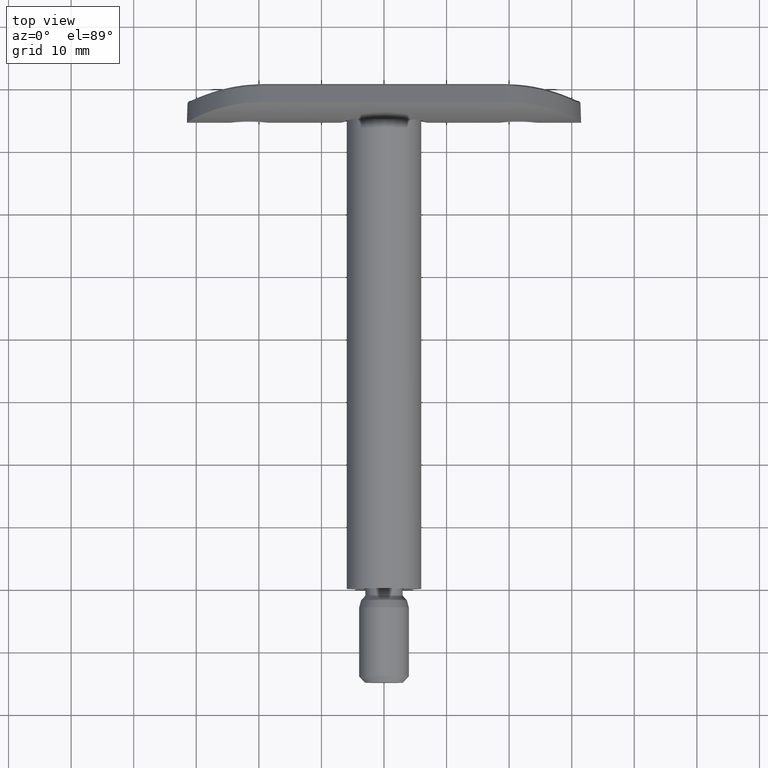
[diagram: clean part render]
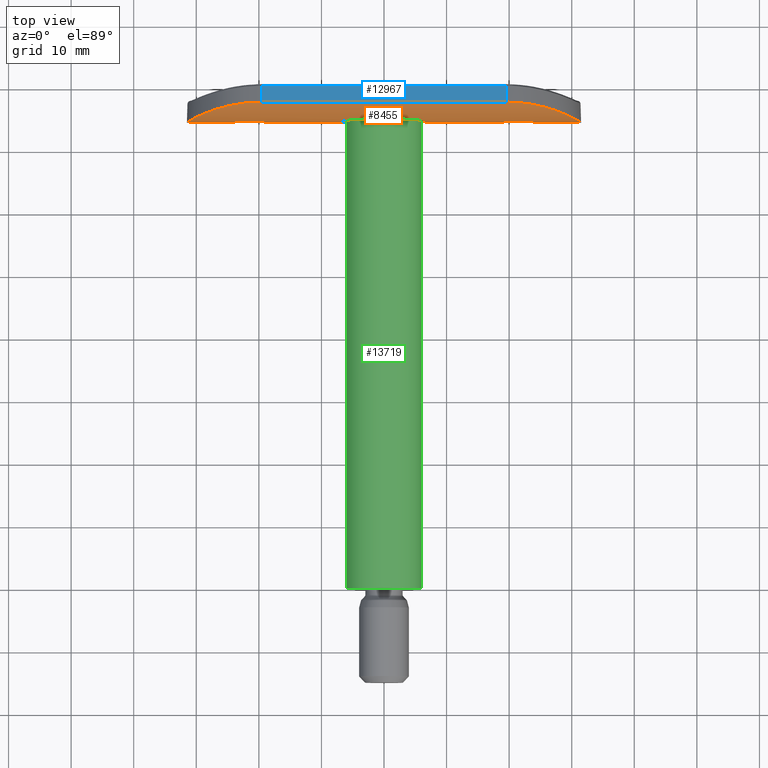
[diagram: same view with three faces highlighted in distinct colors, each labeled with its STEP entity id]
A machine part, top view with three faces highlighted in distinct colors.
Their STEP definitions:

[orange] entity #8455 — the highlighted cylindrical surface (partial cylindrical patch) has radius 24.7 mm, axis along (1, 0, 0).
#14 = B_SPLINE_CURVE_WITH_KNOTS ( 'NONE', 3,
 ( #2940, #12219, #14462, #5200, #1727, #13321, #4004, #9780, #1828, #1782, #12117, #7633, #11052, #14567, #7579, #1629, #553, #8775, #9930, #2985, #11106, #12266, #5301, #13430 ),
 .UNSPECIFIED., .F., .F.,
 ( 4, 2, 2, 2, 2, 2, 2, 2, 2, 2, 2, 4 ),
 ( 0.0000000000000000000, 0.002406580534152873200, 0.003609870801229308900, 0.004813161068305744600, 0.007219741602458616000, 0.008423031869535050800, 0.009626322136611485700, 0.01203290267076435900, 0.01443948320491723000, 0.01564277347199366500, 0.01684606373907009800, 0.01925264427322297100 ),
 .UNSPECIFIED. ) ;
#95 = VERTEX_POINT ( 'NONE', #11768 ) ;
#172 = ORIENTED_EDGE ( 'NONE', *, *, #750, .T. ) ;
#198 = DIRECTION ( 'NONE',  ( -0.0000000000000000000, -0.0000000000000000000, -1.000000000000000000 ) ) ;
#281 = CARTESIAN_POINT ( 'NONE',  ( 1.441817418702243700, -3.458668788007271700, -18.57955434167038800 ) ) ;
#290 = CARTESIAN_POINT ( 'NONE',  ( -3.249807177699458400, -3.285276256254570100, -21.28221223882568600 ) ) ;
#346 = CARTESIAN_POINT ( 'NONE',  ( 12.00000000000000200, -0.3891176290278198800, -19.50000000000000400 ) ) ;
#553 = CARTESIAN_POINT ( 'NONE',  ( 5.463922679457855500, -2.899855688073363700, 30.40472026188329500 ) ) ;
#695 = CARTESIAN_POINT ( 'NONE',  ( -1.982421812593012600, -3.420960420399060500, 18.91580210916033200 ) ) ;
#724 = CARTESIAN_POINT ( 'NONE',  ( 11.42949741348638400, -0.6987825248718153600, -23.47544721763576800 ) ) ;
#745 = CARTESIAN_POINT ( 'NONE',  ( -0.4220505040573415100, -3.497286553197269200, 18.27042330278523600 ) ) ;
#750 = EDGE_CURVE ( 'NONE', #95, #11746, #13730, .T. ) ;
#751 = CARTESIAN_POINT ( 'NONE',  ( -1.986943769982262100, -3.420596174952429600, -24.08074577929469800 ) ) ;
#800 = CARTESIAN_POINT ( 'NONE',  ( 2.921636230268347400, -3.326735962964975500, 20.06057683977638100 ) ) ;
#803 = CARTESIAN_POINT ( 'NONE',  ( 0.4262816367173300500, -3.497196390455035600, -24.72888380609290900 ) ) ;
#827 = CARTESIAN_POINT ( 'NONE',  ( -5.975428329596222400E-016, -3.499999999999999600, -31.50000000000000000 ) ) ;
#854 = CARTESIAN_POINT ( 'NONE',  ( 3.250117987902504200, -3.285235001506537700, 21.28960992835650500 ) ) ;
#904 = CARTESIAN_POINT ( 'NONE',  ( 2.582514304022025500, -3.364912029721630400, 23.48463302487810400 ) ) ;
#950 = CARTESIAN_POINT ( 'NONE',  ( 3.702883057980036300, -3.221611446828293300, -5.944753873245680600 ) ) ;
#1093 = CARTESIAN_POINT ( 'NONE',  ( -3.250190240478200800, -3.285225411215453300, -21.71199434389744100 ) ) ;
#1145 = CARTESIAN_POINT ( 'NONE',  ( -8.911261608662785600, -1.838321853592154600, 27.88239206832154700 ) ) ;
#1160 = CARTESIAN_POINT ( 'NONE',  ( -0.2109798347091573500, -3.500010510333770900, -18.24992012145774500 ) ) ;
#1179 = CARTESIAN_POINT ( 'NONE',  ( 4.944694126030440500, -2.999999999999999600, -4.954795656735005800 ) ) ;
#1208 = CARTESIAN_POINT ( 'NONE',  ( 2.921636230268347400, -3.326735962964975500, -20.06057683977638500 ) ) ;
#1289 = VERTEX_POINT ( 'NONE', #11454 ) ;
#1382 = CARTESIAN_POINT ( 'NONE',  ( -2.150301673070284600, -3.406681511644019000, -23.94612466389267900 ) ) ;
#1397 = VERTEX_POINT ( 'NONE', #8426 ) ;
#1440 = CARTESIAN_POINT ( 'NONE',  ( 3.145602793858011100, -3.298917505554015900, -22.34465928829434100 ) ) ;
#1483 = B_SPLINE_CURVE_WITH_KNOTS ( 'NONE', 3,
 ( #12209, #5242, #13366, #9920, #4342, #2075, #12469, #8811, #4198, #7844, #904, #12308, #13423, #9971, #1876, #6458, #3028, #854, #10133, #11190, #11234, #800, #5498, #5343, #4242, #14610, #14766, #5293, #9016, #1976, #3127, #7789, #10182, #13475, #745, #3177, #12362, #8968, #6515, #695, #8916, #11098, #13644, #14654, #7678, #4141, #8861, #1927, #3074, #5393, #6569, #7732, #10077, #2025, #11290, #4296, #12414, #5451, #6624, #6674, #14814, #14864, #13693, #4394, #5598, #9063 ),
 .UNSPECIFIED., .T., .F.,
 ( 4, 2, 2, 2, 2, 2, 2, 2, 2, 2, 2, 2, 2, 2, 2, 2, 2, 2, 2, 2, 2, 2, 2, 2, 2, 2, 2, 2, 2, 2, 2, 2, 4 ),
 ( 0.0000000000000000000, 0.0006356739169426549500, 0.001271347833885310100, 0.001907021750827965400, 0.002542695667770621100, 0.003178369584713276000, 0.003814043501655930800, 0.004449717418598586100, 0.005085391335541240500, 0.005721065252483895800, 0.006356739169426551100, 0.006992413086369205500, 0.007628087003311860700, 0.008263760920254515200, 0.008899434837197170400, 0.009535108754139825700, 0.01017078267108247900, 0.01080645658802513500, 0.01144213050496779000, 0.01207780442191044300, 0.01271347833885309900, 0.01334915225579575400, 0.01398482617273840900, 0.01462050008968106400, 0.01525617400662372000, 0.01589184792356637300, 0.01652752184050903000, 0.01716319575745168400, 0.01779886967439433700, 0.01843454359133699400, 0.01907021750827964800, 0.01970589142522230500, 0.02034156534216495900 ),
 .UNSPECIFIED. ) ;
#1500 = CARTESIAN_POINT ( 'NONE',  ( -0.4613270650688290300, -3.499938778425376800, 6.999783975279062700 ) ) ;
#1628 = EDGE_LOOP ( 'NONE', ( #10936, #12361, #7639, #10975 ) ) ;
#1629 = CARTESIAN_POINT ( 'NONE',  ( 6.166834720918713800, -2.727790392386204600, 30.05461524013826800 ) ) ;
#1638 = VECTOR ( 'NONE', #7577, 1000.000000000000000 ) ;
#1700 = CARTESIAN_POINT ( 'NONE',  ( -4.619758273601314100, -3.066392909125744000, 5.279069050060323700 ) ) ;
#1727 = CARTESIAN_POINT ( 'NONE',  ( 11.62887820642736400, -0.5915967544966699300, 22.68293612948989200 ) ) ;
#1782 = CARTESIAN_POINT ( 'NONE',  ( 9.890151245574553900, -1.434654235787243200, 26.64699636764817500 ) ) ;
#1799 = CARTESIAN_POINT ( 'NONE',  ( 10.86486654361806200, -0.9843359645018946400, -24.95505419486224600 ) ) ;
#1828 = CARTESIAN_POINT ( 'NONE',  ( 10.51842810678145800, -1.153150254458431100, 25.65304723848731100 ) ) ;
#1849 = FACE_BOUND ( 'NONE', #1628, .T. ) ;
#1876 = CARTESIAN_POINT ( 'NONE',  ( 3.145602793858011100, -3.298917505554015900, 22.34465928829433100 ) ) ;
#1927 = CARTESIAN_POINT ( 'NONE',  ( -3.228488752594627500, -3.288132100549915600, 21.07076263997144500 ) ) ;
#1931 = CARTESIAN_POINT ( 'NONE',  ( 1.628533578940714500, -3.446890606981302800, -24.32054149359074200 ) ) ;
#1954 = CARTESIAN_POINT ( 'NONE',  ( 2.252456887811377800, -3.398064970478003900, 6.631658829567119700 ) ) ;
#1964 = CARTESIAN_POINT ( 'NONE',  ( -2.449477864485654100, -3.378702782939688700, -23.64648115479911500 ) ) ;
#1969 = CARTESIAN_POINT ( 'NONE',  ( -2.596251214192388800E-015, 21.19999999999999900, 31.50000000000000000 ) ) ;
#1976 = CARTESIAN_POINT ( 'NONE',  ( 1.048445795597582600, -3.478523968811645200, 18.41639793004620900 ) ) ;
#2016 = CARTESIAN_POINT ( 'NONE',  ( 3.104373883665370500, -3.304985315062821400, -6.278156452919871500 ) ) ;
#2025 = CARTESIAN_POINT ( 'NONE',  ( -2.921687475631708200, -3.326729683492593900, 22.93929899338683900 ) ) ;
#2075 = CARTESIAN_POINT ( 'NONE',  ( 1.441954681305530400, -3.458661141373547300, 24.42038182540180800 ) ) ;
#2116 = CARTESIAN_POINT ( 'NONE',  ( -1.814120957742461100, -3.434271401321889800, -6.764719211756244900 ) ) ;
#2201 = CARTESIAN_POINT ( 'NONE',  ( -8.099404966363247000, -2.141546448550109400, -28.70539369568060200 ) ) ;
#2249 = CARTESIAN_POINT ( 'NONE',  ( 2.995621684029787500E-015, -3.499999999999999600, 31.50000000000000000 ) ) ;
#2298 = CARTESIAN_POINT ( 'NONE',  ( -9.653965207986141600, -1.536749814308947700, 26.98022621720532400 ) ) ;
#2316 = CARTESIAN_POINT ( 'NONE',  ( -2.445857231437020400, -3.379065480835992100, -19.34938136638993500 ) ) ;
#2360 = CARTESIAN_POINT ( 'NONE',  ( 3.228968999414811000, -3.288068742268655400, -21.07402802110504000 ) ) ;
#2609 = CARTESIAN_POINT ( 'NONE',  ( 2.920924858137348100, -3.326819413791212800, -22.94065377375132200 ) ) ;
#2790 = CARTESIAN_POINT ( 'NONE',  ( -12.00000000000000700, -0.3891176290278207700, 19.50000000000000000 ) ) ;
#2809 = CARTESIAN_POINT ( 'NONE',  ( -3.507858777830441500, -3.250488119786609800, 6.061956157192245300 ) ) ;
#2813 = ORIENTED_EDGE ( 'NONE', *, *, #7938, .T. ) ;
#2907 = CARTESIAN_POINT ( 'NONE',  ( 8.365447555507348200, -2.042077026027277600, -28.43512920070712700 ) ) ;
#2940 = CARTESIAN_POINT ( 'NONE',  ( 12.00000000000000200, -0.3891176290278198800, 19.50000000000000000 ) ) ;
#2955 = CARTESIAN_POINT ( 'NONE',  ( 1.613878791505601200, -3.459937399638181700, -31.43733599986672200 ) ) ;
#2985 = CARTESIAN_POINT ( 'NONE',  ( 3.199605881044099000, -3.295028801910493400, 31.15149741152382400 ) ) ;
#3005 = CARTESIAN_POINT ( 'NONE',  ( 1.814120957742453300, -3.434271401321890200, 6.764719211756246700 ) ) ;
#3028 = CARTESIAN_POINT ( 'NONE',  ( 3.249880998723770000, -3.285266457778697200, 21.71401965252696400 ) ) ;
#3074 = CARTESIAN_POINT ( 'NONE',  ( -3.249807177699458400, -3.285276256254570100, 21.28221223882567200 ) ) ;
#3105 = CARTESIAN_POINT ( 'NONE',  ( 9.882580253765647500, -1.437978920396823800, -26.65824030469762500 ) ) ;
#3119 = CARTESIAN_POINT ( 'NONE',  ( 2.895206156396185300, -3.330654714361623600, -6.377318429325933700 ) ) ;
#3127 = CARTESIAN_POINT ( 'NONE',  ( 0.8458750479650837300, -3.486392439299874600, 18.35481623275267500 ) ) ;
#3177 = CARTESIAN_POINT ( 'NONE',  ( -0.8418640684662275200, -3.486541973491128500, 18.35364382795063400 ) ) ;
#3195 = CARTESIAN_POINT ( 'NONE',  ( -2.921687475631707300, -3.326729683492594800, -22.93929899338684900 ) ) ;
#3256 = CARTESIAN_POINT ( 'NONE',  ( -12.00000000000000700, -0.3891176290278207700, -19.50000000000000400 ) ) ;
#3271 = CARTESIAN_POINT ( 'NONE',  ( -2.467196461669808500, -3.377382717035131600, -6.554754229386874800 ) ) ;
#3313 = CARTESIAN_POINT ( 'NONE',  ( -8.916507318172458300, -1.836285184458887900, -27.87664932174586200 ) ) ;
#3465 = CARTESIAN_POINT ( 'NONE',  ( -10.51579242464841000, -1.154463491023568500, 25.65865357391694000 ) ) ;
#3530 = CARTESIAN_POINT ( 'NONE',  ( 2.584887031182733000, -3.364656388163503200, -19.51867835071172800 ) ) ;
#3535 = CARTESIAN_POINT ( 'NONE',  ( -0.4220505040573415100, -3.497286553197269200, -18.27042330278524300 ) ) ;
#3541 = CARTESIAN_POINT ( 'NONE',  ( -3.082714793016406500, -3.307012495101080400, -20.44892233757737200 ) ) ;
#3567 = CARTESIAN_POINT ( 'NONE',  ( -0.8418640684662275200, -3.486541973491128500, -18.35364382795063800 ) ) ;
#3599 = CARTESIAN_POINT ( 'NONE',  ( -2.919109473246688700, -3.327037974719329900, -20.05546040873659300 ) ) ;
#3778 = CARTESIAN_POINT ( 'NONE',  ( 3.250117987902504200, -3.285235001506537700, -21.28960992835651600 ) ) ;
#3913 = VECTOR ( 'NONE', #12957, 1000.000000000000000 ) ;
#3976 = CARTESIAN_POINT ( 'NONE',  ( -0.9268221827277778300, -3.486703027385018600, 6.953472772645450400 ) ) ;
#4004 = CARTESIAN_POINT ( 'NONE',  ( 11.29067707203921800, -0.7689707214613733500, 23.83865606415823600 ) ) ;
#4072 = CARTESIAN_POINT ( 'NONE',  ( 12.00000000000000500, -0.3891176290278224900, -20.31369094222388900 ) ) ;
#4141 = CARTESIAN_POINT ( 'NONE',  ( -3.082714793016406500, -3.307012495101080400, 20.44892233757736100 ) ) ;
#4167 = EDGE_CURVE ( 'NONE', #8039, #9263, #14, .T. ) ;
#4173 = CARTESIAN_POINT ( 'NONE',  ( -5.975428329596222400E-016, -3.499999999999999600, -31.50000000000000000 ) ) ;
#4198 = CARTESIAN_POINT ( 'NONE',  ( 2.148643466521440400, -3.406827119913415500, 23.94758434933311600 ) ) ;
#4223 = CARTESIAN_POINT ( 'NONE',  ( 3.094103989699625000, -3.306283974156007500, 6.283216356208059000 ) ) ;
#4242 = CARTESIAN_POINT ( 'NONE',  ( 2.450461030192566400, -3.378616584868296100, 19.35438140301992900 ) ) ;
#4290 = CARTESIAN_POINT ( 'NONE',  ( -1.589313055216701000, -3.449857779271487100, -6.821096054503871500 ) ) ;
#4296 = CARTESIAN_POINT ( 'NONE',  ( -2.586419452875106600, -3.364496326919987500, 23.47940370198354300 ) ) ;
#4299 = CARTESIAN_POINT ( 'NONE',  ( -5.421010862427522200E-017, -3.500000000000000400, -24.75000000000000400 ) ) ;
#4333 = CARTESIAN_POINT ( 'NONE',  ( 0.9268221827277697300, -3.486703027385019900, -6.953472772645452200 ) ) ;
#4342 = CARTESIAN_POINT ( 'NONE',  ( 1.048488193951796500, -3.478522546845636700, 24.58359138282293800 ) ) ;
#4352 = ORIENTED_EDGE ( 'NONE', *, *, #10769, .T. ) ;
#4394 = CARTESIAN_POINT ( 'NONE',  ( -0.4274466900177084600, -3.497194931004350900, 24.72888114623807000 ) ) ;
#4422 = CARTESIAN_POINT ( 'NONE',  ( -11.62887820642736400, -0.5915967544966716000, -22.68293612948989900 ) ) ;
#4425 = CARTESIAN_POINT ( 'NONE',  ( 12.00000000000000200, -0.3891176290278198800, 19.50000000000000000 ) ) ;
#4435 = CARTESIAN_POINT ( 'NONE',  ( -3.094103989699632100, -3.306283974156007100, -6.283216356208051900 ) ) ;
#4492 = CARTESIAN_POINT ( 'NONE',  ( -2.586419452875106600, -3.364496326919988300, -23.47940370198355400 ) ) ;
#4639 = DIRECTION ( 'NONE',  ( -1.000000000000000000, 0.0000000000000000000, 0.0000000000000000000 ) ) ;
#4766 = VERTEX_POINT ( 'NONE', #346 ) ;
#4799 = CARTESIAN_POINT ( 'NONE',  ( -2.819111302374419200, -3.338881383881762100, -19.86901160357330200 ) ) ;
#4878 = CARTESIAN_POINT ( 'NONE',  ( 2.147463236063145600, -3.406941177972779800, -19.05115535936712200 ) ) ;
#4929 = CARTESIAN_POINT ( 'NONE',  ( 3.084555791033617700, -3.306779691159285500, -20.45433615908088500 ) ) ;
#4935 = CARTESIAN_POINT ( 'NONE',  ( 0.9101723511709786100, -3.487389582423188200, 6.955907976689035300 ) ) ;
#4986 = CARTESIAN_POINT ( 'NONE',  ( 4.944694126030440500, -2.999999999999999100, 31.50000000000000000 ) ) ;
#5078 = CARTESIAN_POINT ( 'NONE',  ( -3.702883057980043400, -3.221611446828293700, 5.944753873245681500 ) ) ;
#5144 = CARTESIAN_POINT ( 'NONE',  ( -1.627349625629135300, -3.446975909061671000, -18.67868679901903700 ) ) ;
#5200 = CARTESIAN_POINT ( 'NONE',  ( 11.71699478268042900, -0.5441595704861768000, 22.29309573292401900 ) ) ;
#5242 = CARTESIAN_POINT ( 'NONE',  ( 0.2149600074958208900, -3.499999999999999100, 24.74999999999999600 ) ) ;
#5272 = CARTESIAN_POINT ( 'NONE',  ( -3.229275557674607700, -3.288027737676937300, -21.92331720750980800 ) ) ;
#5293 = CARTESIAN_POINT ( 'NONE',  ( 1.631891750141179200, -3.446663392802080700, 18.68145392592213100 ) ) ;
#5301 = CARTESIAN_POINT ( 'NONE',  ( 0.8132883673673647600, -3.499999999999998700, 31.50000000000000000 ) ) ;
#5321 = CARTESIAN_POINT ( 'NONE',  ( 8.911261608662778500, -1.838321853592151500, -27.88239206832154700 ) ) ;
#5343 = CARTESIAN_POINT ( 'NONE',  ( 2.584887031182733000, -3.364656388163503200, 19.51867835071172100 ) ) ;
#5386 = CARTESIAN_POINT ( 'NONE',  ( 3.507858777830434400, -3.250488119786609800, -6.061956157192249800 ) ) ;
#5393 = CARTESIAN_POINT ( 'NONE',  ( -3.250190240478200800, -3.285225411215453300, 21.71199434389744100 ) ) ;
#5396 = CARTESIAN_POINT ( 'NONE',  ( 0.8419598421202363300, -3.486521205037465400, -24.64618980535316300 ) ) ;
#5451 = CARTESIAN_POINT ( 'NONE',  ( -2.150301673070284600, -3.406681511644020800, 23.94612466389267200 ) ) ;
#5454 = CARTESIAN_POINT ( 'NONE',  ( 2.148643466521440400, -3.406827119913415500, -23.94758434933311600 ) ) ;
#5457 = ORIENTED_EDGE ( 'NONE', *, *, #13678, .T. ) ;
#5466 = CARTESIAN_POINT ( 'NONE',  ( 0.0000000000000000000, -3.499999999999999600, -24.75000000000000000 ) ) ;
#5489 = DIRECTION ( 'NONE',  ( -0.0000000000000000000, -0.0000000000000000000, -1.000000000000000000 ) ) ;
#5498 = CARTESIAN_POINT ( 'NONE',  ( 2.819978761927810100, -3.338779599132366500, 19.87058408495830300 ) ) ;
#5575 = CARTESIAN_POINT ( 'NONE',  ( -7.497033304171731400, -2.344925040722428000, -29.19690548182576300 ) ) ;
#5598 = CARTESIAN_POINT ( 'NONE',  ( -0.2149600074958210000, -3.500000000000001300, 24.75000000000000400 ) ) ;
#5651 = CARTESIAN_POINT ( 'NONE',  ( -4.944694126030445800, -2.999999999999999600, -4.954795656735000400 ) ) ;
#5816 = CARTESIAN_POINT ( 'NONE',  ( 4.944694126030440500, -2.999999999999999600, 4.954795656735007500 ) ) ;
#5882 = CARTESIAN_POINT ( 'NONE',  ( -0.8129412476029729300, -3.500000000000002200, 31.50000000000000000 ) ) ;
#6050 = CARTESIAN_POINT ( 'NONE',  ( 3.249880998723770000, -3.285266457778697200, -21.71401965252696400 ) ) ;
#6279 = DIRECTION ( 'NONE',  ( -0.0000000000000000000, -0.0000000000000000000, -1.000000000000000000 ) ) ;
#6313 = CARTESIAN_POINT ( 'NONE',  ( -4.944694126030445800, -2.999999999999999100, 31.50000000000000000 ) ) ;
#6439 = EDGE_LOOP ( 'NONE', ( #2813 ) ) ;
#6458 = CARTESIAN_POINT ( 'NONE',  ( 3.229180493874203300, -3.288041351211628900, 21.92504068983046000 ) ) ;
#6491 = CARTESIAN_POINT ( 'NONE',  ( 9.653965207986139800, -1.536749814308946600, -26.98022621720533500 ) ) ;
#6515 = CARTESIAN_POINT ( 'NONE',  ( -1.627349625629135300, -3.446975909061671000, 18.67868679901903700 ) ) ;
#6546 = CARTESIAN_POINT ( 'NONE',  ( 3.695680994533014000, -3.222717251131141900, 5.949315055624839300 ) ) ;
#6569 = CARTESIAN_POINT ( 'NONE',  ( -3.229275557674607700, -3.288027737676937300, 21.92331720750980800 ) ) ;
#6601 = CARTESIAN_POINT ( 'NONE',  ( -2.804642605329985100, -3.343479015047385400, -31.23668300403215200 ) ) ;
#6624 = CARTESIAN_POINT ( 'NONE',  ( -1.986943769982261600, -3.420596174952430100, 24.08074577929469500 ) ) ;
#6629 = CARTESIAN_POINT ( 'NONE',  ( 2.448068854155371500, -3.378843921975784000, -23.64809142697421500 ) ) ;
#6665 = CARTESIAN_POINT ( 'NONE',  ( -2.145980111837815200, -3.407060914855164900, -19.05007194730128700 ) ) ;
#6674 = CARTESIAN_POINT ( 'NONE',  ( -1.631801882374063000, -3.446681808548467600, 24.31876159671214700 ) ) ;
#6719 = CARTESIAN_POINT ( 'NONE',  ( 4.619758273601307000, -3.066392909125745400, -5.279069050060329000 ) ) ;
#6775 = CARTESIAN_POINT ( 'NONE',  ( -3.695680994533021600, -3.222717251131141900, -5.949315055624834000 ) ) ;
#6814 = CARTESIAN_POINT ( 'NONE',  ( -4.354802112542866900, -3.115994167807660800, -30.82274288943988300 ) ) ;
#6910 = CARTESIAN_POINT ( 'NONE',  ( -6.158843963928775100, -2.729662869301814800, 30.05830163374237100 ) ) ;
#7057 = CARTESIAN_POINT ( 'NONE',  ( -1.613878791505604100, -3.459937399638179900, 31.43733599986672900 ) ) ;
#7222 = CARTESIAN_POINT ( 'NONE',  ( 1.631891750141179200, -3.446663392802080700, -18.68145392592213800 ) ) ;
#7272 = CARTESIAN_POINT ( 'NONE',  ( -4.944694126030445800, -2.999999999999999600, 4.954795656735002200 ) ) ;
#7577 = DIRECTION ( 'NONE',  ( 0.0000000000000000000, 0.0000000000000000000, 1.000000000000000000 ) ) ;
#7579 = CARTESIAN_POINT ( 'NONE',  ( 7.497033304171735000, -2.344925040722426200, 29.19690548182575900 ) ) ;
#7633 = CARTESIAN_POINT ( 'NONE',  ( 9.174398946052690500, -1.734467328778705800, 27.58503671903729100 ) ) ;
#7639 = ORIENTED_EDGE ( 'NONE', *, *, #8445, .T. ) ;
#7654 = CARTESIAN_POINT ( 'NONE',  ( 7.147371149447641500, -2.445773758848734900, -29.42307681136129500 ) ) ;
#7676 = CARTESIAN_POINT ( 'NONE',  ( -5.421010862427522200E-017, -3.500000000000000400, -24.75000000000000400 ) ) ;
#7678 = CARTESIAN_POINT ( 'NONE',  ( -2.919109473246688700, -3.327037974719329900, 20.05546040873660000 ) ) ;
#7680 = CARTESIAN_POINT ( 'NONE',  ( 1.441954681305530400, -3.458661141373547300, -24.42038182540180800 ) ) ;
#7707 = CARTESIAN_POINT ( 'NONE',  ( -4.944694126030445800, -2.999999999999999600, 4.954795656735002200 ) ) ;
#7732 = CARTESIAN_POINT ( 'NONE',  ( -3.146949334671616900, -3.298743498262102200, 22.33912333454529500 ) ) ;
#7760 = CARTESIAN_POINT ( 'NONE',  ( -0.8132883673673631000, -3.499999999999998700, -31.49999999999999300 ) ) ;
#7784 = B_SPLINE_CURVE_WITH_KNOTS ( 'NONE', 3,
 ( #4173, #12390, #2955, #10055, #13509, #14634, #12287, #13559, #9849, #7654, #8693, #9948, #2907, #5321, #13453, #6491, #3105, #11076, #1799, #724, #11021, #11212, #4072, #12191 ),
 .UNSPECIFIED., .F., .F.,
 ( 4, 2, 2, 2, 2, 2, 2, 2, 2, 2, 2, 4 ),
 ( 1.018549874411314200E-019, 0.002407596472457980000, 0.003611394708686971500, 0.004815192944915964300, 0.007222789417373949900, 0.008426587653602947100, 0.009630385889831942500, 0.01083418412606094000, 0.01203798236228993500, 0.01444557883474792900, 0.01685317530720592500, 0.01926077177966392000 ),
 .UNSPECIFIED. ) ;
#7789 = CARTESIAN_POINT ( 'NONE',  ( 0.4289946887875572000, -3.497154488339017300, 18.27143234800352200 ) ) ;
#7803 = VERTEX_POINT ( 'NONE', #5466 ) ;
#7816 = CYLINDRICAL_SURFACE ( 'NONE', #13264, 24.69999999999999900 ) ;
#7844 = CARTESIAN_POINT ( 'NONE',  ( 2.448068854155371500, -3.378843921975784000, 23.64809142697420800 ) ) ;
#7895 = VERTEX_POINT ( 'NONE', #8767 ) ;
#7938 = EDGE_CURVE ( 'NONE', #1289, #1289, #1483, .T. ) ;
#7943 = LINE ( 'NONE', #4986, #14855 ) ;
#7952 = CARTESIAN_POINT ( 'NONE',  ( -1.631801882374063900, -3.446681808548467600, -24.31876159671214700 ) ) ;
#7982 = CARTESIAN_POINT ( 'NONE',  ( -3.199605881044096800, -3.295028801910499600, -31.15149741152382700 ) ) ;
#8039 = VERTEX_POINT ( 'NONE', #4425 ) ;
#8078 = CARTESIAN_POINT ( 'NONE',  ( -8.365447555507350000, -2.042077026027281100, 28.43512920070712700 ) ) ;
#8183 = CARTESIAN_POINT ( 'NONE',  ( -7.147371149447642400, -2.445773758848735400, 29.42307681136128400 ) ) ;
#8352 = CARTESIAN_POINT ( 'NONE',  ( 0.4289946887875572000, -3.497154488339017300, -18.27143234800352500 ) ) ;
#8399 = CARTESIAN_POINT ( 'NONE',  ( 2.582514304022025500, -3.364912029721630400, -23.48463302487809700 ) ) ;
#8422 = VERTEX_POINT ( 'NONE', #5816 ) ;
#8426 = CARTESIAN_POINT ( 'NONE',  ( -5.975428329596222400E-016, -3.499999999999999600, -31.50000000000000000 ) ) ;
#8445 = EDGE_CURVE ( 'NONE', #7895, #12265, #9383, .T. ) ;
#8455 = ADVANCED_FACE ( 'NONE', ( #13446, #1849, #11264, #13083 ), #7816, .T. ) ;
#8505 = ORIENTED_EDGE ( 'NONE', *, *, #4167, .T. ) ;
#8582 = CARTESIAN_POINT ( 'NONE',  ( -12.00000000000000400, -0.3891176290278253700, 20.31369094222388200 ) ) ;
#8627 = CARTESIAN_POINT ( 'NONE',  ( -11.92859431294146000, -0.4292547332370194600, 21.11482056701557000 ) ) ;
#8645 = CARTESIAN_POINT ( 'NONE',  ( -4.268475809192760400, -3.131377040152442300, 5.566496248495693200 ) ) ;
#8693 = CARTESIAN_POINT ( 'NONE',  ( 7.468358965609676000, -2.346049953370364700, -29.19099359684591400 ) ) ;
#8767 = CARTESIAN_POINT ( 'NONE',  ( 4.944694126030440500, -2.999999999999999600, -4.954795656735005800 ) ) ;
#8775 = CARTESIAN_POINT ( 'NONE',  ( 4.354802112542873100, -3.115994167807660800, 30.82274288943988700 ) ) ;
#8811 = CARTESIAN_POINT ( 'NONE',  ( 1.981638893480566400, -3.421016337797383700, 24.08470176822194000 ) ) ;
#8814 = ORIENTED_EDGE ( 'NONE', *, *, #11851, .F. ) ;
#8861 = CARTESIAN_POINT ( 'NONE',  ( -3.145441558617082300, -3.298937748419579700, 20.65526232580828000 ) ) ;
#8916 = CARTESIAN_POINT ( 'NONE',  ( -2.145980111837815200, -3.407060914855164900, 19.05007194730127700 ) ) ;
#8919 = CARTESIAN_POINT ( 'NONE',  ( 1.981638893480566400, -3.421016337797383700, -24.08470176822195100 ) ) ;
#8962 = CARTESIAN_POINT ( 'NONE',  ( 0.4613270650688217100, -3.499938778425377700, -6.999783975279061800 ) ) ;
#8968 = CARTESIAN_POINT ( 'NONE',  ( -1.438119886177334800, -3.458876220669374400, 18.57782101119126800 ) ) ;
#8999 = ORIENTED_EDGE ( 'NONE', *, *, #11452, .F. ) ;
#9016 = CARTESIAN_POINT ( 'NONE',  ( 1.441817418702243700, -3.458668788007271700, 18.57955434167037700 ) ) ;
#9056 = CARTESIAN_POINT ( 'NONE',  ( -0.4547478558961132200, -3.500060783457287900, -7.000214478792521800 ) ) ;
#9063 = CARTESIAN_POINT ( 'NONE',  ( -5.421010862427522200E-017, -3.500000000000000400, 24.75000000000000000 ) ) ;
#9096 = CARTESIAN_POINT ( 'NONE',  ( -3.975921368411834400, -3.181057464200420800, -30.94410955837537000 ) ) ;
#9146 = CARTESIAN_POINT ( 'NONE',  ( -9.890151245574543300, -1.434654235787247600, -26.64699636764817100 ) ) ;
#9244 = CARTESIAN_POINT ( 'NONE',  ( -9.168815601873276900, -1.736688008828346300, 27.59147257706480600 ) ) ;
#9263 = VERTEX_POINT ( 'NONE', #12794 ) ;
#9298 = CARTESIAN_POINT ( 'NONE',  ( -5.458459083564780400, -2.901169967168793800, 30.40738950800777100 ) ) ;
#9299 = EDGE_CURVE ( 'NONE', #9263, #95, #11887, .T. ) ;
#9311 = CARTESIAN_POINT ( 'NONE',  ( 2.820104897840356900, -3.338771190172046500, -23.12946516964677500 ) ) ;
#9383 = B_SPLINE_CURVE_WITH_KNOTS ( 'NONE', 3,
 ( #1179, #6719, #10069, #950, #5386, #2016, #3119, #11283, #11226, #4333, #8962, #9056, #12459, #4290, #2116, #10230, #3271, #11375, #4435, #12569, #6775, #11534, #13949, #5651 ),
 .UNSPECIFIED., .F., .F.,
 ( 4, 2, 2, 2, 2, 2, 2, 2, 2, 2, 2, 4 ),
 ( 0.0000000000000000000, 0.001372261099670967100, 0.002058391649506450500, 0.002744522199341934100, 0.004116783299012901000, 0.005489044398683868300, 0.006861305498354835500, 0.007547436048190319200, 0.008233566598025801900, 0.008919697147861284700, 0.009605827697696769200, 0.01097808879736773800 ),
 .UNSPECIFIED. ) ;
#9392 = CARTESIAN_POINT ( 'NONE',  ( -8.077189355929988300, -2.144204123385022400, 28.69694654420741000 ) ) ;
#9553 = CARTESIAN_POINT ( 'NONE',  ( 3.229180493874203300, -3.288041351211628900, -21.92504068983046700 ) ) ;
#9720 = EDGE_LOOP ( 'NONE', ( #8814 ) ) ;
#9780 = CARTESIAN_POINT ( 'NONE',  ( 10.86687449944537300, -0.9833561896143282500, 24.95091473416316000 ) ) ;
#9789 = LINE ( 'NONE', #6313, #1638 ) ;
#9798 = CARTESIAN_POINT ( 'NONE',  ( 12.00000000000000200, -0.3891176290278198800, 31.50000000000000000 ) ) ;
#9799 = CARTESIAN_POINT ( 'NONE',  ( -2.260897217556037100, -3.399985800498200200, 6.640630988081296600 ) ) ;
#9849 = CARTESIAN_POINT ( 'NONE',  ( 6.158843963928769800, -2.729662869301813500, -30.05830163374236700 ) ) ;
#9894 = CARTESIAN_POINT ( 'NONE',  ( 2.467196461669803700, -3.377382717035131600, 6.554754229386878400 ) ) ;
#9912 = EDGE_CURVE ( 'NONE', #12265, #13611, #9789, .T. ) ;
#9920 = CARTESIAN_POINT ( 'NONE',  ( 0.8419598421202363300, -3.486521205037465400, 24.64618980535316000 ) ) ;
#9930 = CARTESIAN_POINT ( 'NONE',  ( 3.975921368411837100, -3.181057464200415000, 30.94410955837537400 ) ) ;
#9948 = CARTESIAN_POINT ( 'NONE',  ( 8.077189355929984800, -2.144204123385022000, -28.69694654420741700 ) ) ;
#9971 = CARTESIAN_POINT ( 'NONE',  ( 3.083085501326915200, -3.306963426241079900, 22.54969953520823000 ) ) ;
#10004 = CARTESIAN_POINT ( 'NONE',  ( 4.944694126030440500, -2.999999999999999600, 4.954795656735007500 ) ) ;
#10055 = CARTESIAN_POINT ( 'NONE',  ( 2.796109589762970900, -3.344419946068636100, -31.23832297120842600 ) ) ;
#10069 = CARTESIAN_POINT ( 'NONE',  ( 4.268475809192755000, -3.131377040152442300, -5.566496248495697700 ) ) ;
#10077 = CARTESIAN_POINT ( 'NONE',  ( -3.084503152530318400, -3.306786141279531900, 22.54579137482485900 ) ) ;
#10106 = CARTESIAN_POINT ( 'NONE',  ( -10.51842810678145000, -1.153150254458435800, -25.65304723848730700 ) ) ;
#10133 = CARTESIAN_POINT ( 'NONE',  ( 3.228968999414811000, -3.288068742268655400, 21.07402802110504300 ) ) ;
#10182 = CARTESIAN_POINT ( 'NONE',  ( 0.2134336483071487800, -3.499989428722897000, 18.25008034171159800 ) ) ;
#10211 = CARTESIAN_POINT ( 'NONE',  ( -12.00000000000000200, -0.3891176290278237600, -20.31369584259641300 ) ) ;
#10230 = CARTESIAN_POINT ( 'NONE',  ( -2.252456887811384900, -3.398064970478003000, -6.631658829567116200 ) ) ;
#10293 = CARTESIAN_POINT ( 'NONE',  ( -1.443264341664996800, -3.458573981125006900, -24.41963623571544100 ) ) ;
#10367 = CARTESIAN_POINT ( 'NONE',  ( -4.345683333910672600, -3.117644390435899000, 30.82586979659556200 ) ) ;
#10422 = CARTESIAN_POINT ( 'NONE',  ( -9.882580253765651100, -1.437978920396825600, 26.65824030469761800 ) ) ;
#10484 = CARTESIAN_POINT ( 'NONE',  ( 3.145966426978843900, -3.298870316110067000, -20.65703608244032800 ) ) ;
#10521 = CARTESIAN_POINT ( 'NONE',  ( -2.796109589762971700, -3.344419946068632600, 31.23832297120842600 ) ) ;
#10650 = CARTESIAN_POINT ( 'NONE',  ( -0.8475358459718710400, -3.486349084516868300, -24.64484771000624300 ) ) ;
#10720 = CARTESIAN_POINT ( 'NONE',  ( 3.083085501326915200, -3.306963426241079900, -22.54969953520823400 ) ) ;
#10723 = CARTESIAN_POINT ( 'NONE',  ( 0.8458750479650837300, -3.486392439299874600, -18.35481623275267900 ) ) ;
#10740 = CARTESIAN_POINT ( 'NONE',  ( -1.052444521325399900, -3.478343608760879200, -24.58214993768254400 ) ) ;
#10769 = EDGE_CURVE ( 'NONE', #1397, #4766, #7784, .T. ) ;
#10848 = CARTESIAN_POINT ( 'NONE',  ( -10.86486654361805800, -0.9843359645018935300, 24.95505419486225000 ) ) ;
#10922 = CARTESIAN_POINT ( 'NONE',  ( -2.895206156396191100, -3.330654714361623200, 6.377318429325932800 ) ) ;
#10936 = ORIENTED_EDGE ( 'NONE', *, *, #13550, .T. ) ;
#10968 = CARTESIAN_POINT ( 'NONE',  ( -1.824993573192417600, -3.436592787528541100, 6.773417262809392300 ) ) ;
#10975 = ORIENTED_EDGE ( 'NONE', *, *, #9912, .T. ) ;
#11021 = CARTESIAN_POINT ( 'NONE',  ( 11.64506833623742600, -0.5832138593540771000, -22.69272106915794800 ) ) ;
#11052 = CARTESIAN_POINT ( 'NONE',  ( 8.916507318172460100, -1.836285184458885400, 27.87664932174585900 ) ) ;
#11076 = CARTESIAN_POINT ( 'NONE',  ( 10.51579242464841400, -1.154463491023566500, -25.65865357391695400 ) ) ;
#11098 = CARTESIAN_POINT ( 'NONE',  ( -2.445857231437020400, -3.379065480835992100, 19.34938136638993100 ) ) ;
#11106 = CARTESIAN_POINT ( 'NONE',  ( 2.804642605329991800, -3.343479015047384500, 31.23668300403213700 ) ) ;
#11190 = CARTESIAN_POINT ( 'NONE',  ( 3.145966426978843900, -3.298870316110067000, 20.65703608244031700 ) ) ;
#11212 = CARTESIAN_POINT ( 'NONE',  ( 11.92859431294146200, -0.4292547332370143000, -21.11482056701557800 ) ) ;
#11226 = CARTESIAN_POINT ( 'NONE',  ( 1.824993573192409800, -3.436592787528540200, -6.773417262809390500 ) ) ;
#11234 = CARTESIAN_POINT ( 'NONE',  ( 3.084555791033617700, -3.306779691159285500, 20.45433615908087100 ) ) ;
#11264 = FACE_OUTER_BOUND ( 'NONE', #14850, .T. ) ;
#11283 = CARTESIAN_POINT ( 'NONE',  ( 2.260897217556030500, -3.399985800498198900, -6.640630988081295700 ) ) ;
#11290 = CARTESIAN_POINT ( 'NONE',  ( -2.822021043315670500, -3.338546057428907900, 23.12597719317353300 ) ) ;
#11312 = CARTESIAN_POINT ( 'NONE',  ( -11.29067707203921100, -0.7689707214613790100, -23.83865606415823300 ) ) ;
#11352 = CARTESIAN_POINT ( 'NONE',  ( -3.084503152530318400, -3.306786141279531000, -22.54579137482488000 ) ) ;
#11362 = CARTESIAN_POINT ( 'NONE',  ( -11.71699478268041800, -0.5441595704861782500, -22.29309573292401600 ) ) ;
#11375 = CARTESIAN_POINT ( 'NONE',  ( -2.888020079185417800, -3.331492812756322100, -6.380533003626186300 ) ) ;
#11452 = EDGE_CURVE ( 'NONE', #8039, #4766, #11936, .T. ) ;
#11454 = CARTESIAN_POINT ( 'NONE',  ( 0.0000000000000000000, -3.499999999999999600, 24.74999999999999600 ) ) ;
#11534 = CARTESIAN_POINT ( 'NONE',  ( -4.266909019631909500, -3.131711637005496500, -5.568044360090118200 ) ) ;
#11674 = CARTESIAN_POINT ( 'NONE',  ( -1.046874735027936600, -3.478582182987588000, -18.41594874575436000 ) ) ;
#11694 = CARTESIAN_POINT ( 'NONE',  ( 0.2134336483071487800, -3.499989428722897000, -18.25008034171159800 ) ) ;
#11746 = VERTEX_POINT ( 'NONE', #3256 ) ;
#11768 = CARTESIAN_POINT ( 'NONE',  ( -12.00000000000000700, -0.3891176290278207700, 19.50000000000000000 ) ) ;
#11845 = CARTESIAN_POINT ( 'NONE',  ( 2.450461030192566400, -3.378616584868296100, -19.35438140301992900 ) ) ;
#11847 = CARTESIAN_POINT ( 'NONE',  ( -12.00000000000000700, -0.3891176290278207700, 31.50000000000000000 ) ) ;
#11851 = EDGE_CURVE ( 'NONE', #7803, #7803, #13871, .T. ) ;
#11887 = B_SPLINE_CURVE_WITH_KNOTS ( 'NONE', 3,
 ( #2249, #5882, #7057, #10521, #13877, #13976, #10367, #9298, #6910, #8183, #15047, #9392, #8078, #1145, #9244, #2298, #10422, #3465, #10848, #14465, #13230, #8627, #8582, #2790 ),
 .UNSPECIFIED., .F., .F.,
 ( 4, 2, 2, 2, 2, 2, 2, 2, 2, 2, 2, 4 ),
 ( 2.761428510983103300E-018, 0.002407596472457986900, 0.003611394708686980600, 0.004815192944915973800, 0.007222789417373963800, 0.008426587653602961000, 0.009630385889831958100, 0.01083418412606095400, 0.01203798236228994900, 0.01444557883474794100, 0.01685317530720592900, 0.01926077177966392000 ),
 .UNSPECIFIED. ) ;
#11936 = LINE ( 'NONE', #9798, #13572 ) ;
#12074 = B_SPLINE_CURVE_WITH_KNOTS ( 'NONE', 3,
 ( #7272, #1700, #8645, #5078, #2809, #13195, #10922, #9799, #10968, #3976, #1500, #12087, #4935, #13053, #3005, #1954, #9894, #12337, #4223, #13508, #6546, #12286, #14483, #10004 ),
 .UNSPECIFIED., .F., .F.,
 ( 4, 2, 2, 2, 2, 2, 2, 2, 2, 2, 2, 4 ),
 ( 0.0000000000000000000, 0.001372261099670967300, 0.002058391649506450900, 0.002744522199341934600, 0.004116783299012901800, 0.005489044398683869100, 0.006861305498354836400, 0.007547436048190320000, 0.008233566598025803700, 0.008919697147861286500, 0.009605827697696771000, 0.01097808879736773800 ),
 .UNSPECIFIED. ) ;
#12087 = CARTESIAN_POINT ( 'NONE',  ( 0.4547478558961057200, -3.500060783457288300, 7.000214478792524500 ) ) ;
#12117 = CARTESIAN_POINT ( 'NONE',  ( 9.661430124385200100, -1.533590909220055000, 26.97020615263074100 ) ) ;
#12191 = CARTESIAN_POINT ( 'NONE',  ( 12.00000000000000200, -0.3891176290278198800, -19.50000000000000400 ) ) ;
#12209 = CARTESIAN_POINT ( 'NONE',  ( -5.421010862427522200E-017, -3.500000000000000400, 24.75000000000000000 ) ) ;
#12219 = CARTESIAN_POINT ( 'NONE',  ( 12.00000000000000000, -0.3891176290278198200, 20.31369584259640600 ) ) ;
#12265 = VERTEX_POINT ( 'NONE', #13057 ) ;
#12266 = CARTESIAN_POINT ( 'NONE',  ( 1.616414263079191300, -3.459901341102897400, 31.43731128375658200 ) ) ;
#12287 = CARTESIAN_POINT ( 'NONE',  ( 4.345683333910670000, -3.117644390435898100, -30.82586979659556500 ) ) ;
#12286 = CARTESIAN_POINT ( 'NONE',  ( 4.266909019631902400, -3.131711637005497400, 5.568044360090127900 ) ) ;
#12307 = CARTESIAN_POINT ( 'NONE',  ( -0.2149600074958210000, -3.500000000000001300, -24.75000000000000400 ) ) ;
#12308 = CARTESIAN_POINT ( 'NONE',  ( 2.820104897840356900, -3.338771190172046500, 23.12946516964676000 ) ) ;
#12322 = EDGE_CURVE ( 'NONE', #8422, #7895, #7943, .T. ) ;
#12337 = CARTESIAN_POINT ( 'NONE',  ( 2.888020079185411100, -3.331492812756322100, 6.380533003626190700 ) ) ;
#12361 = ORIENTED_EDGE ( 'NONE', *, *, #12322, .T. ) ;
#12362 = CARTESIAN_POINT ( 'NONE',  ( -1.046874735027936600, -3.478582182987588000, 18.41594874575436300 ) ) ;
#12390 = CARTESIAN_POINT ( 'NONE',  ( 0.8129412476029719300, -3.500000000000001300, -31.50000000000000700 ) ) ;
#12414 = CARTESIAN_POINT ( 'NONE',  ( -2.449477864485654100, -3.378702782939691400, 23.64648115479909400 ) ) ;
#12441 = CARTESIAN_POINT ( 'NONE',  ( -11.41587513011002000, -0.7039332646957846600, -23.45570776623293000 ) ) ;
#12459 = CARTESIAN_POINT ( 'NONE',  ( -0.9101723511709869400, -3.487389582423189100, -6.955907976689030800 ) ) ;
#12469 = CARTESIAN_POINT ( 'NONE',  ( 1.628533578940714500, -3.446890606981302800, 24.32054149359075300 ) ) ;
#12492 = CARTESIAN_POINT ( 'NONE',  ( -10.86687449944537300, -0.9833561896143341300, -24.95091473416315600 ) ) ;
#12549 = CARTESIAN_POINT ( 'NONE',  ( -9.661430124385194800, -1.533590909220056600, -26.97020615263073800 ) ) ;
#12569 = CARTESIAN_POINT ( 'NONE',  ( -3.497568988969778300, -3.251961984438951300, -6.067890774016329500 ) ) ;
#12713 = CARTESIAN_POINT ( 'NONE',  ( -2.583148365582440300, -3.364841392298523200, -19.51635280207329600 ) ) ;
#12714 = CARTESIAN_POINT ( 'NONE',  ( -3.145441558617082300, -3.298937748419579700, -20.65526232580828400 ) ) ;
#12794 = CARTESIAN_POINT ( 'NONE',  ( 2.995621684029787500E-015, -3.499999999999999600, 31.50000000000000000 ) ) ;
#12843 = CARTESIAN_POINT ( 'NONE',  ( -1.438119886177334800, -3.458876220669374400, -18.57782101119127900 ) ) ;
#12957 = DIRECTION ( 'NONE',  ( -0.0000000000000000000, -0.0000000000000000000, -1.000000000000000000 ) ) ;
#13000 = CARTESIAN_POINT ( 'NONE',  ( 1.983576646391062500, -3.420855199813044800, -18.91684372447764100 ) ) ;
#13003 = CARTESIAN_POINT ( 'NONE',  ( 1.048445795597582600, -3.478523968811645200, -18.41639793004621200 ) ) ;
#13053 = CARTESIAN_POINT ( 'NONE',  ( 1.589313055216693200, -3.449857779271487500, 6.821096054503877700 ) ) ;
#13057 = CARTESIAN_POINT ( 'NONE',  ( -4.944694126030445800, -2.999999999999999600, -4.954795656735000400 ) ) ;
#13080 = B_SPLINE_CURVE_WITH_KNOTS ( 'NONE', 3,
 ( #14588, #10211, #14841, #11362, #4422, #12441, #11312, #12492, #10106, #9146, #12549, #13720, #3313, #2201, #5575, #13558, #14898, #6814, #9096, #7982, #6601, #14742, #7760, #827 ),
 .UNSPECIFIED., .F., .F.,
 ( 4, 2, 2, 2, 2, 2, 2, 2, 2, 2, 2, 4 ),
 ( 3.476216610979977100E-018, 0.002406580534152875300, 0.003609870801229310600, 0.004813161068305746300, 0.007219741602458626400, 0.008423031869535066400, 0.009626322136611503000, 0.01203290267076437100, 0.01443948320491723900, 0.01564277347199367200, 0.01684606373907010500, 0.01925264427322297800 ),
 .UNSPECIFIED. ) ;
#13083 = FACE_BOUND ( 'NONE', #9720, .T. ) ;
#13195 = CARTESIAN_POINT ( 'NONE',  ( -3.104373883665378000, -3.304985315062821400, 6.278156452919870600 ) ) ;
#13215 = ORIENTED_EDGE ( 'NONE', *, *, #9299, .T. ) ;
#13230 = CARTESIAN_POINT ( 'NONE',  ( -11.64506833623742700, -0.5832138593540825400, 22.69272106915794400 ) ) ;
#13264 = AXIS2_PLACEMENT_3D ( 'NONE', #1969, #5489, #4639 ) ;
#13321 = CARTESIAN_POINT ( 'NONE',  ( 11.41587513011003600, -0.7039332646957829900, 23.45570776623293300 ) ) ;
#13366 = CARTESIAN_POINT ( 'NONE',  ( 0.4262816367173300500, -3.497196390455035600, 24.72888380609289900 ) ) ;
#13423 = CARTESIAN_POINT ( 'NONE',  ( 2.920924858137348100, -3.326819413791212800, 22.94065377375131500 ) ) ;
#13430 = CARTESIAN_POINT ( 'NONE',  ( 2.995621684029787500E-015, -3.499999999999999600, 31.50000000000000000 ) ) ;
#13446 = FACE_BOUND ( 'NONE', #6439, .T. ) ;
#13453 = CARTESIAN_POINT ( 'NONE',  ( 9.168815601873276900, -1.736688008828345600, -27.59147257706481000 ) ) ;
#13475 = CARTESIAN_POINT ( 'NONE',  ( -0.2109798347091573500, -3.500010510333770900, 18.24992012145774500 ) ) ;
#13509 = CARTESIAN_POINT ( 'NONE',  ( 3.186978305075531400, -3.296663330154672600, -31.15440249755115300 ) ) ;
#13508 = CARTESIAN_POINT ( 'NONE',  ( 3.497568988969771600, -3.251961984438951300, 6.067890774016335700 ) ) ;
#13550 = EDGE_CURVE ( 'NONE', #13611, #8422, #12074, .T. ) ;
#13559 = CARTESIAN_POINT ( 'NONE',  ( 5.458459083564774200, -2.901169967168792500, -30.40738950800777500 ) ) ;
#13558 = CARTESIAN_POINT ( 'NONE',  ( -6.166834720918711100, -2.727790392386203700, -30.05461524013827600 ) ) ;
#13572 = VECTOR ( 'NONE', #6279, 1000.000000000000000 ) ;
#13584 = CARTESIAN_POINT ( 'NONE',  ( 1.048488193951796500, -3.478522546845636700, -24.58359138282293100 ) ) ;
#13611 = VERTEX_POINT ( 'NONE', #7707 ) ;
#13633 = CARTESIAN_POINT ( 'NONE',  ( -1.982421812593012600, -3.420960420399060500, -18.91580210916033200 ) ) ;
#13644 = CARTESIAN_POINT ( 'NONE',  ( -2.583148365582440300, -3.364841392298523200, 19.51635280207329300 ) ) ;
#13678 = EDGE_CURVE ( 'NONE', #11746, #1397, #13080, .T. ) ;
#13693 = CARTESIAN_POINT ( 'NONE',  ( -0.8475358459718710400, -3.486349084516868300, 24.64484771000624300 ) ) ;
#13720 = CARTESIAN_POINT ( 'NONE',  ( -9.174398946052685100, -1.734467328778706900, -27.58503671903728000 ) ) ;
#13730 = LINE ( 'NONE', #11847, #3913 ) ;
#13820 = CARTESIAN_POINT ( 'NONE',  ( -3.146949334671616900, -3.298743498262102200, -22.33912333454529500 ) ) ;
#13871 = B_SPLINE_CURVE_WITH_KNOTS ( 'NONE', 3,
 ( #4299, #14658, #803, #5396, #13584, #7680, #1931, #8919, #5454, #6629, #8399, #9311, #2609, #10720, #1440, #9553, #6050, #3778, #2360, #10484, #4929, #1208, #14190, #3530, #11845, #4878, #13000, #7222, #281, #13003, #10723, #8352, #11694, #1160, #3535, #3567, #11674, #12843, #5144, #13633, #6665, #2316, #12713, #4799, #3599, #3541, #12714, #14973, #290, #1093, #5272, #13820, #11352, #3195, #14733, #4492, #1964, #1382, #751, #7952, #10293, #10740, #10650, #14608, #12307, #7676 ),
 .UNSPECIFIED., .T., .F.,
 ( 4, 2, 2, 2, 2, 2, 2, 2, 2, 2, 2, 2, 2, 2, 2, 2, 2, 2, 2, 2, 2, 2, 2, 2, 2, 2, 2, 2, 2, 2, 2, 2, 4 ),
 ( 0.0000000000000000000, 0.0006356739169426549500, 0.001271347833885310100, 0.001907021750827965400, 0.002542695667770621100, 0.003178369584713276000, 0.003814043501655930800, 0.004449717418598586100, 0.005085391335541240500, 0.005721065252483895800, 0.006356739169426551100, 0.006992413086369205500, 0.007628087003311860700, 0.008263760920254515200, 0.008899434837197170400, 0.009535108754139825700, 0.01017078267108247900, 0.01080645658802513500, 0.01144213050496779000, 0.01207780442191044300, 0.01271347833885309900, 0.01334915225579575400, 0.01398482617273840900, 0.01462050008968106400, 0.01525617400662372000, 0.01589184792356637300, 0.01652752184050903000, 0.01716319575745168400, 0.01779886967439433700, 0.01843454359133699400, 0.01907021750827964800, 0.01970589142522230500, 0.02034156534216495900 ),
 .UNSPECIFIED. ) ;
#13877 = CARTESIAN_POINT ( 'NONE',  ( -3.186978305075533600, -3.296663330154676600, 31.15440249755115000 ) ) ;
#13949 = CARTESIAN_POINT ( 'NONE',  ( -4.619725309892004400, -3.066399644475322500, -5.279101946565265100 ) ) ;
#13976 = CARTESIAN_POINT ( 'NONE',  ( -3.961919930534433000, -3.183324947430795900, 30.94830242344761800 ) ) ;
#14190 = CARTESIAN_POINT ( 'NONE',  ( 2.819978761927810100, -3.338779599132366500, -19.87058408495830600 ) ) ;
#14462 = CARTESIAN_POINT ( 'NONE',  ( 11.92859548616417900, -0.4292482158758161300, 21.11347366024901700 ) ) ;
#14465 = CARTESIAN_POINT ( 'NONE',  ( -11.42949741348638200, -0.6987825248718139100, 23.47544721763575400 ) ) ;
#14483 = CARTESIAN_POINT ( 'NONE',  ( 4.619725309891999000, -3.066399644475322500, 5.279101946565267800 ) ) ;
#14567 = CARTESIAN_POINT ( 'NONE',  ( 8.099404966363254100, -2.141546448550108100, 28.70539369568059100 ) ) ;
#14588 = CARTESIAN_POINT ( 'NONE',  ( -12.00000000000000700, -0.3891176290278207700, -19.50000000000000400 ) ) ;
#14608 = CARTESIAN_POINT ( 'NONE',  ( -0.4274466900177084600, -3.497194931004350900, -24.72888114623807700 ) ) ;
#14610 = CARTESIAN_POINT ( 'NONE',  ( 2.147463236063145600, -3.406941177972779800, 19.05115535936712600 ) ) ;
#14634 = CARTESIAN_POINT ( 'NONE',  ( 3.961919930534429500, -3.183324947430789600, -30.94830242344761800 ) ) ;
#14654 = CARTESIAN_POINT ( 'NONE',  ( -2.819111302374419200, -3.338881383881762100, 19.86901160357330600 ) ) ;
#14658 = CARTESIAN_POINT ( 'NONE',  ( 0.2149600074958208900, -3.499999999999999100, -24.75000000000000400 ) ) ;
#14733 = CARTESIAN_POINT ( 'NONE',  ( -2.822021043315668700, -3.338546057428910100, -23.12597719317354700 ) ) ;
#14742 = CARTESIAN_POINT ( 'NONE',  ( -1.616414263079185100, -3.459901341102897800, -31.43731128375658900 ) ) ;
#14766 = CARTESIAN_POINT ( 'NONE',  ( 1.983576646391062500, -3.420855199813044800, 18.91684372447764100 ) ) ;
#14814 = CARTESIAN_POINT ( 'NONE',  ( -1.443264341664996600, -3.458573981125005100, 24.41963623571544100 ) ) ;
#14841 = CARTESIAN_POINT ( 'NONE',  ( -11.92859548616417700, -0.4292482158758177400, -21.11347366024902800 ) ) ;
#14850 = EDGE_LOOP ( 'NONE', ( #172, #5457, #4352, #8999, #8505, #13215 ) ) ;
#14855 = VECTOR ( 'NONE', #198, 1000.000000000000000 ) ;
#14864 = CARTESIAN_POINT ( 'NONE',  ( -1.052444521325399500, -3.478343608760877900, 24.58214993768254400 ) ) ;
#14898 = CARTESIAN_POINT ( 'NONE',  ( -5.463922679457850200, -2.899855688073363700, -30.40472026188329100 ) ) ;
#14973 = CARTESIAN_POINT ( 'NONE',  ( -3.228488752594627500, -3.288132100549915600, -21.07076263997145200 ) ) ;
#15047 = CARTESIAN_POINT ( 'NONE',  ( -7.468358965609681400, -2.346049953370365600, 29.19099359684591400 ) ) ;

[blue] entity #12967 — the highlighted planar face has unit normal (0, -0.4858, -0.8741).
#17 = CARTESIAN_POINT ( 'NONE',  ( 12.00000000000000400, -0.3891176290278239900, 19.50000000000000000 ) ) ;
#346 = CARTESIAN_POINT ( 'NONE',  ( 12.00000000000000200, -0.3891176290278198800, -19.50000000000000400 ) ) ;
#787 = CARTESIAN_POINT ( 'NONE',  ( 10.53971119023871600, 2.238077944829626600, 19.50000000000000000 ) ) ;
#891 = DIRECTION ( 'NONE',  ( 0.0000000000000000000, 0.0000000000000000000, 1.000000000000000000 ) ) ;
#2465 = VERTEX_POINT ( 'NONE', #14088 ) ;
#3697 = ORIENTED_EDGE ( 'NONE', *, *, #11452, .T. ) ;
#3795 = CARTESIAN_POINT ( 'NONE',  ( 12.00000000000000200, -0.3891176290278198800, 31.50000000000000000 ) ) ;
#4425 = CARTESIAN_POINT ( 'NONE',  ( 12.00000000000000200, -0.3891176290278198800, 19.50000000000000000 ) ) ;
#4766 = VERTEX_POINT ( 'NONE', #346 ) ;
#5151 = CARTESIAN_POINT ( 'NONE',  ( 12.00000000000000200, -0.3891176290278198800, -19.50000000000000400 ) ) ;
#6211 = LINE ( 'NONE', #787, #13300 ) ;
#6279 = DIRECTION ( 'NONE',  ( -0.0000000000000000000, -0.0000000000000000000, -1.000000000000000000 ) ) ;
#6805 = AXIS2_PLACEMENT_3D ( 'NONE', #3795, #14399, #11907 ) ;
#7797 = LINE ( 'NONE', #5151, #14918 ) ;
#8039 = VERTEX_POINT ( 'NONE', #4425 ) ;
#8374 = ORIENTED_EDGE ( 'NONE', *, *, #14042, .T. ) ;
#8389 = EDGE_LOOP ( 'NONE', ( #14981, #9179, #8374, #3697 ) ) ;
#9179 = ORIENTED_EDGE ( 'NONE', *, *, #13184, .T. ) ;
#9337 = EDGE_CURVE ( 'NONE', #4766, #2465, #7797, .T. ) ;
#9388 = DIRECTION ( 'NONE',  ( 0.4858299595141711800, -0.8740533453047695200, -0.0000000000000000000 ) ) ;
#9596 = CARTESIAN_POINT ( 'NONE',  ( 10.53971119023871600, 2.238077944829625700, 19.50000000000000000 ) ) ;
#9798 = CARTESIAN_POINT ( 'NONE',  ( 12.00000000000000200, -0.3891176290278198800, 31.50000000000000000 ) ) ;
#10739 = PLANE ( 'NONE',  #6805 ) ;
#11452 = EDGE_CURVE ( 'NONE', #8039, #4766, #11936, .T. ) ;
#11732 = FACE_OUTER_BOUND ( 'NONE', #8389, .T. ) ;
#11907 = DIRECTION ( 'NONE',  ( 0.4858299595141711800, -0.8740533453047695200, 0.0000000000000000000 ) ) ;
#11936 = LINE ( 'NONE', #9798, #13572 ) ;
#12557 = LINE ( 'NONE', #17, #13261 ) ;
#12967 = ADVANCED_FACE ( 'NONE', ( #11732 ), #10739, .F. ) ;
#13184 = EDGE_CURVE ( 'NONE', #2465, #14753, #6211, .T. ) ;
#13261 = VECTOR ( 'NONE', #9388, 1000.000000000000100 ) ;
#13275 = DIRECTION ( 'NONE',  ( -0.4858299595141711800, 0.8740533453047695200, 0.0000000000000000000 ) ) ;
#13300 = VECTOR ( 'NONE', #891, 1000.000000000000000 ) ;
#13572 = VECTOR ( 'NONE', #6279, 1000.000000000000000 ) ;
#14042 = EDGE_CURVE ( 'NONE', #14753, #8039, #12557, .T. ) ;
#14088 = CARTESIAN_POINT ( 'NONE',  ( 10.53971119023871600, 2.238077944829626200, -19.50000000000000400 ) ) ;
#14399 = DIRECTION ( 'NONE',  ( -0.8740533453047696400, -0.4858299595141712400, 0.0000000000000000000 ) ) ;
#14753 = VERTEX_POINT ( 'NONE', #9596 ) ;
#14918 = VECTOR ( 'NONE', #13275, 1000.000000000000100 ) ;
#14981 = ORIENTED_EDGE ( 'NONE', *, *, #9337, .T. ) ;

[green] entity #13719 — the highlighted cylindrical surface (bore or boss wall) has radius 6 mm, axis along (-0, -1, -0).
#79 = CARTESIAN_POINT ( 'NONE',  ( 0.0000000000000000000, 0.0000000000000000000, 0.0000000000000000000 ) ) ;
#700 = DIRECTION ( 'NONE',  ( -0.0000000000000000000, -1.000000000000000000, -0.0000000000000000000 ) ) ;
#858 = CARTESIAN_POINT ( 'NONE',  ( 0.0000000000000000000, 74.99999999999998600, 0.0000000000000000000 ) ) ;
#917 = CARTESIAN_POINT ( 'NONE',  ( 0.0000000000000000000, 0.0000000000000000000, 0.0000000000000000000 ) ) ;
#1457 = VERTEX_POINT ( 'NONE', #7858 ) ;
#1522 = CIRCLE ( 'NONE', #10319, 6.000000000000000000 ) ;
#1755 = EDGE_LOOP ( 'NONE', ( #4585 ) ) ;
#2686 = EDGE_CURVE ( 'NONE', #1457, #1457, #1522, .T. ) ;
#3241 = DIRECTION ( 'NONE',  ( 0.0000000000000000000, 0.0000000000000000000, -1.000000000000000000 ) ) ;
#3275 = CIRCLE ( 'NONE', #11520, 6.000000000000000000 ) ;
#3504 = AXIS2_PLACEMENT_3D ( 'NONE', #79, #15004, #9197 ) ;
#4585 = ORIENTED_EDGE ( 'NONE', *, *, #9246, .T. ) ;
#5153 = ORIENTED_EDGE ( 'NONE', *, *, #2686, .F. ) ;
#7858 = CARTESIAN_POINT ( 'NONE',  ( 0.0000000000000000000, 0.0000000000000000000, -6.000000000000000000 ) ) ;
#8381 = FACE_OUTER_BOUND ( 'NONE', #12679, .T. ) ;
#8980 = CARTESIAN_POINT ( 'NONE',  ( 0.0000000000000000000, 74.99999999999998600, -6.000000000000000000 ) ) ;
#9104 = CYLINDRICAL_SURFACE ( 'NONE', #3504, 6.000000000000000000 ) ;
#9197 = DIRECTION ( 'NONE',  ( 0.0000000000000000000, 0.0000000000000000000, -1.000000000000000000 ) ) ;
#9246 = EDGE_CURVE ( 'NONE', #9796, #9796, #3275, .T. ) ;
#9796 = VERTEX_POINT ( 'NONE', #8980 ) ;
#10193 = DIRECTION ( 'NONE',  ( -0.0000000000000000000, -1.000000000000000000, -0.0000000000000000000 ) ) ;
#10319 = AXIS2_PLACEMENT_3D ( 'NONE', #917, #10193, #3241 ) ;
#11520 = AXIS2_PLACEMENT_3D ( 'NONE', #858, #700, #13483 ) ;
#12679 = EDGE_LOOP ( 'NONE', ( #5153 ) ) ;
#13483 = DIRECTION ( 'NONE',  ( 0.0000000000000000000, 0.0000000000000000000, -1.000000000000000000 ) ) ;
#13719 = ADVANCED_FACE ( 'NONE', ( #14554, #8381 ), #9104, .T. ) ;
#14554 = FACE_OUTER_BOUND ( 'NONE', #1755, .T. ) ;
#15004 = DIRECTION ( 'NONE',  ( -0.0000000000000000000, -1.000000000000000000, -0.0000000000000000000 ) ) ;